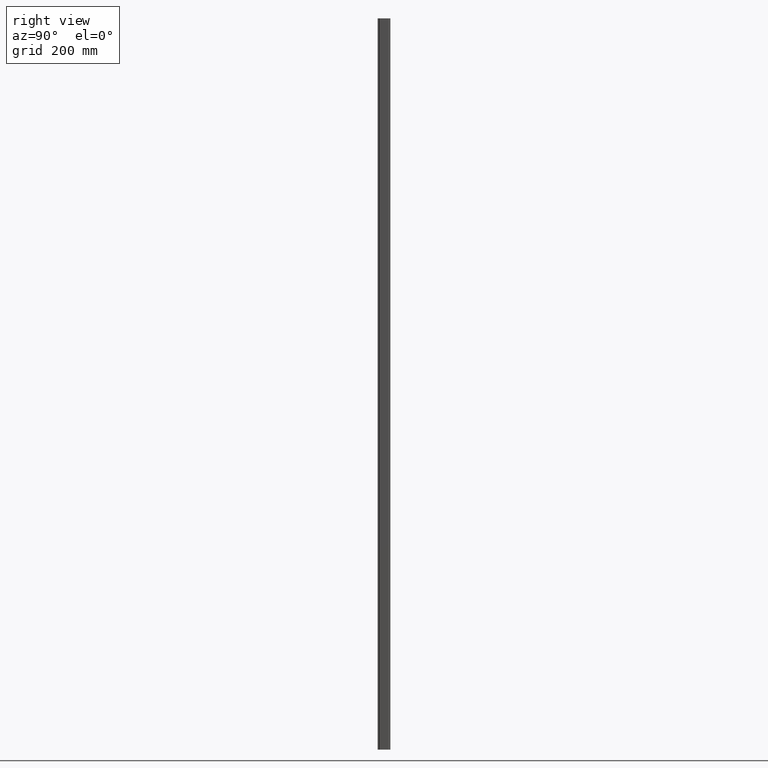
[diagram: clean part render]
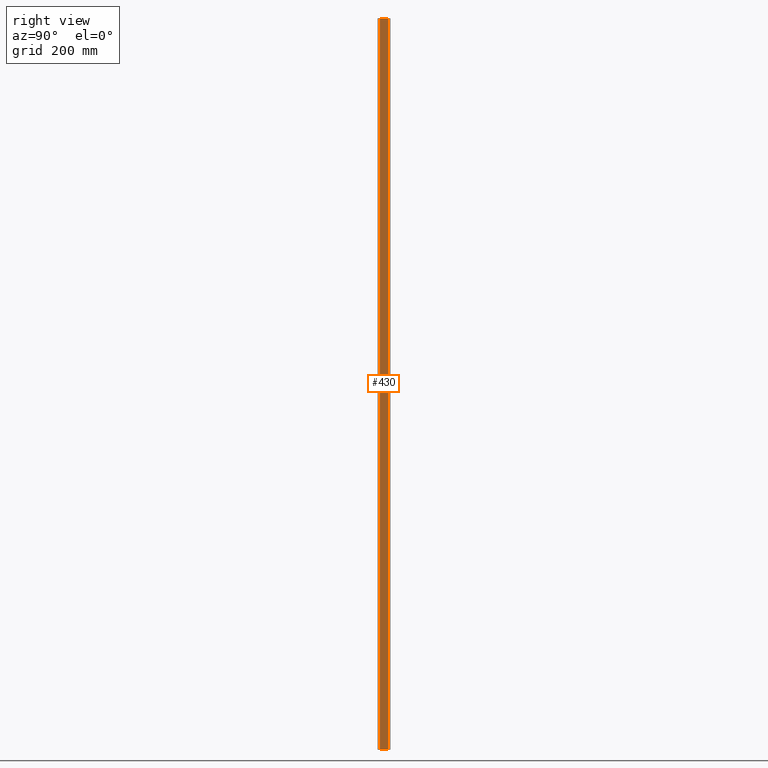
[diagram: same view with one face highlighted and labeled with its STEP entity id]
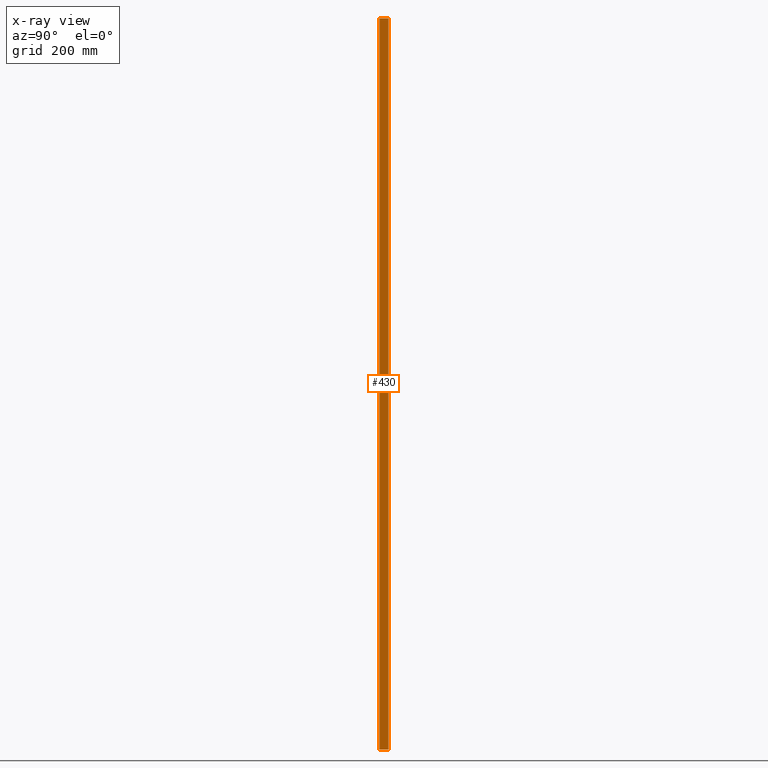
[diagram: x-ray of the same camera — body ghosted, the highlighted face saturated]
A machine part, right view. The second image highlights one B-rep face of the part: STEP entity #430.
The next image is the same camera in x-ray: the body ghosted, the highlighted face saturated — about 0% of this face is hidden behind the body in this view.
In plain terms, the highlighted planar face has unit normal (1, 0, -0).
Its self-contained STEP definition (entity closure, byte-faithful):
#41 = FACE_OUTER_BOUND ( 'NONE', #192, .T. ) ;
#52 = DIRECTION ( 'NONE',  ( -0.0000000000000000000, 0.0000000000000000000, -1.000000000000000000 ) ) ;
#53 = CARTESIAN_POINT ( 'NONE',  ( 1385.825919215657900, 441.1357542965276400, 2000.000000000000000 ) ) ;
#57 = DIRECTION ( 'NONE',  ( 1.000000000000000000, 0.0000000000000000000, -0.0000000000000000000 ) ) ;
#135 = VERTEX_POINT ( 'NONE', #624 ) ;
#143 = VERTEX_POINT ( 'NONE', #611 ) ;
#144 = VERTEX_POINT ( 'NONE', #628 ) ;
#163 = VERTEX_POINT ( 'NONE', #615 ) ;
#192 = EDGE_LOOP ( 'NONE', ( #239, #212, #217, #246 ) ) ;
#212 = ORIENTED_EDGE ( 'NONE', *, *, #472, .T. ) ;
#217 = ORIENTED_EDGE ( 'NONE', *, *, #473, .F. ) ;
#239 = ORIENTED_EDGE ( 'NONE', *, *, #470, .T. ) ;
#246 = ORIENTED_EDGE ( 'NONE', *, *, #406, .T. ) ;
#296 = VECTOR ( 'NONE', #497, 1000.000000000000000 ) ;
#308 = VECTOR ( 'NONE', #509, 1000.000000000000000 ) ;
#317 = VECTOR ( 'NONE', #514, 1000.000000000000000 ) ;
#321 = AXIS2_PLACEMENT_3D ( 'NONE', #53, #57, #52 ) ;
#324 = VECTOR ( 'NONE', #730, 1000.000000000000000 ) ;
#406 = EDGE_CURVE ( 'NONE', #144, #163, #700, .T. ) ;
#430 = ADVANCED_FACE ( 'NONE', ( #41 ), #754, .T. ) ;
#470 = EDGE_CURVE ( 'NONE', #163, #143, #507, .T. ) ;
#472 = EDGE_CURVE ( 'NONE', #143, #135, #498, .T. ) ;
#473 = EDGE_CURVE ( 'NONE', #144, #135, #508, .T. ) ;
#496 = CARTESIAN_POINT ( 'NONE',  ( 1385.825919215657900, 441.1357542965276400, 2000.000000000000000 ) ) ;
#497 = DIRECTION ( 'NONE',  ( 0.0000000000000000000, -1.000000000000000000, 0.0000000000000000000 ) ) ;
#498 = LINE ( 'NONE', #526, #317 ) ;
#507 = LINE ( 'NONE', #496, #296 ) ;
#508 = LINE ( 'NONE', #519, #308 ) ;
#509 = DIRECTION ( 'NONE',  ( 0.0000000000000000000, -1.000000000000000000, 0.0000000000000000000 ) ) ;
#514 = DIRECTION ( 'NONE',  ( -0.0000000000000000000, -0.0000000000000000000, -1.000000000000000000 ) ) ;
#519 = CARTESIAN_POINT ( 'NONE',  ( 1385.825919215657900, 441.1357542965276400, 0.0000000000000000000 ) ) ;
#526 = CARTESIAN_POINT ( 'NONE',  ( 1385.825919215657900, 457.3188036583253500, 2000.000000000000000 ) ) ;
#611 = CARTESIAN_POINT ( 'NONE',  ( 1385.825919215657900, 457.3188036583253500, 2000.000000000000000 ) ) ;
#615 = CARTESIAN_POINT ( 'NONE',  ( 1385.825919215657900, 480.9188036583252600, 2000.000000000000000 ) ) ;
#624 = CARTESIAN_POINT ( 'NONE',  ( 1385.825919215657900, 457.3188036583253500, 0.0000000000000000000 ) ) ;
#628 = CARTESIAN_POINT ( 'NONE',  ( 1385.825919215657900, 480.9188036583252600, 0.0000000000000000000 ) ) ;
#700 = LINE ( 'NONE', #725, #324 ) ;
#725 = CARTESIAN_POINT ( 'NONE',  ( 1385.825919215657900, 480.9188036583252600, 2000.000000000000000 ) ) ;
#730 = DIRECTION ( 'NONE',  ( 0.0000000000000000000, 0.0000000000000000000, 1.000000000000000000 ) ) ;
#754 = PLANE ( 'NONE',  #321 ) ;